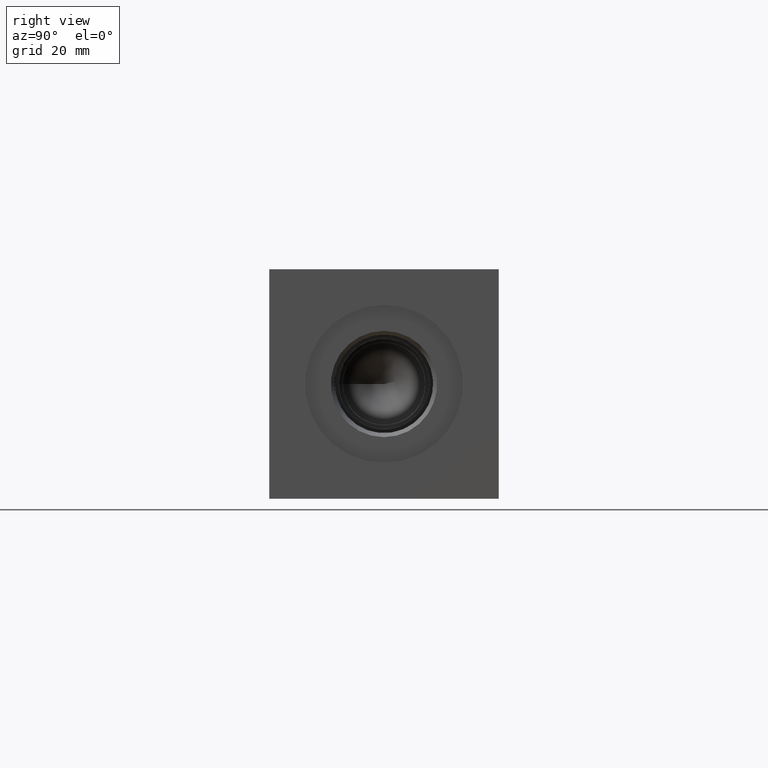
[diagram: clean part render]
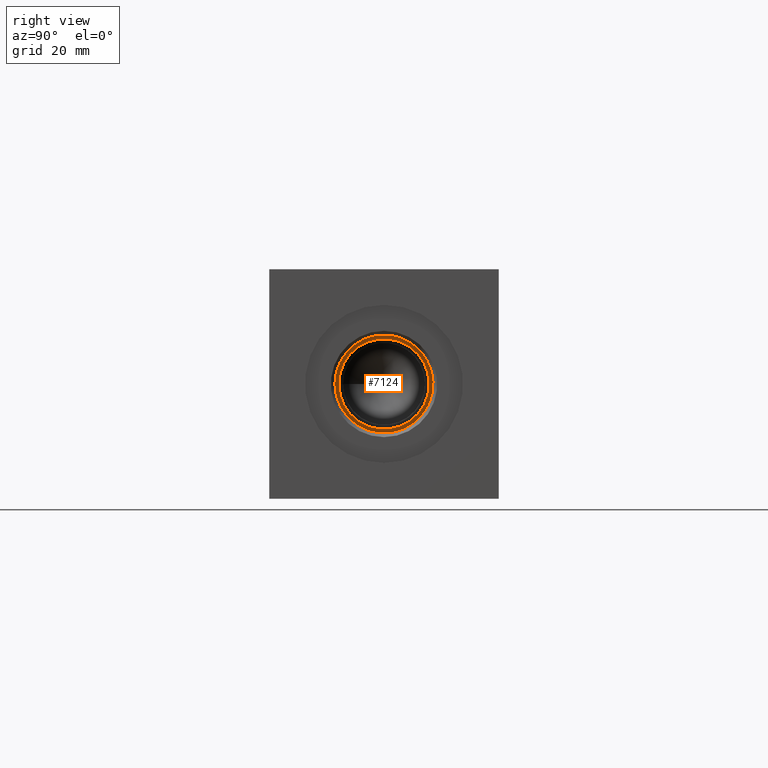
[diagram: same view with one face highlighted and labeled with its STEP entity id]
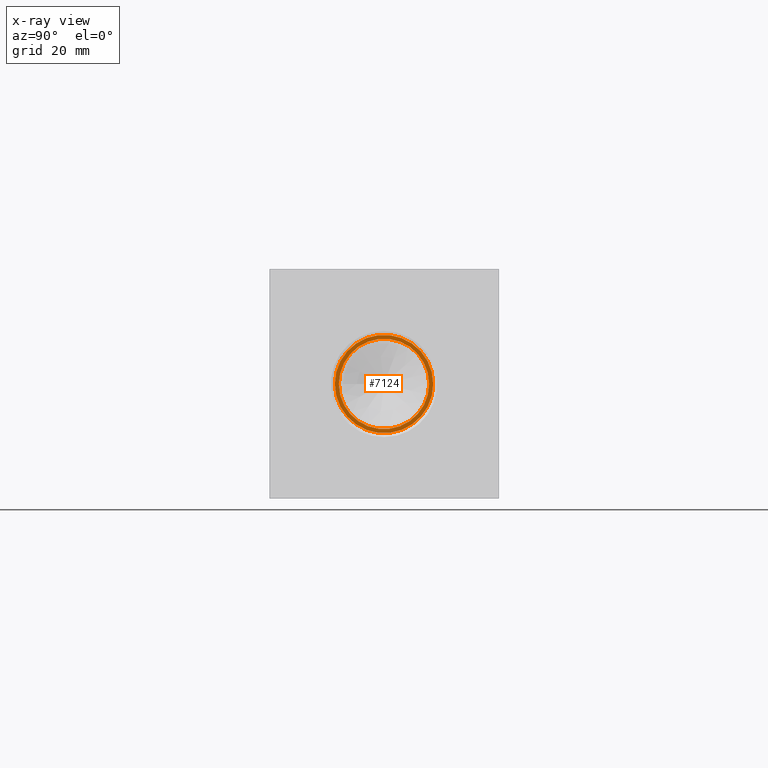
[diagram: x-ray of the same camera — body ghosted, the highlighted face saturated]
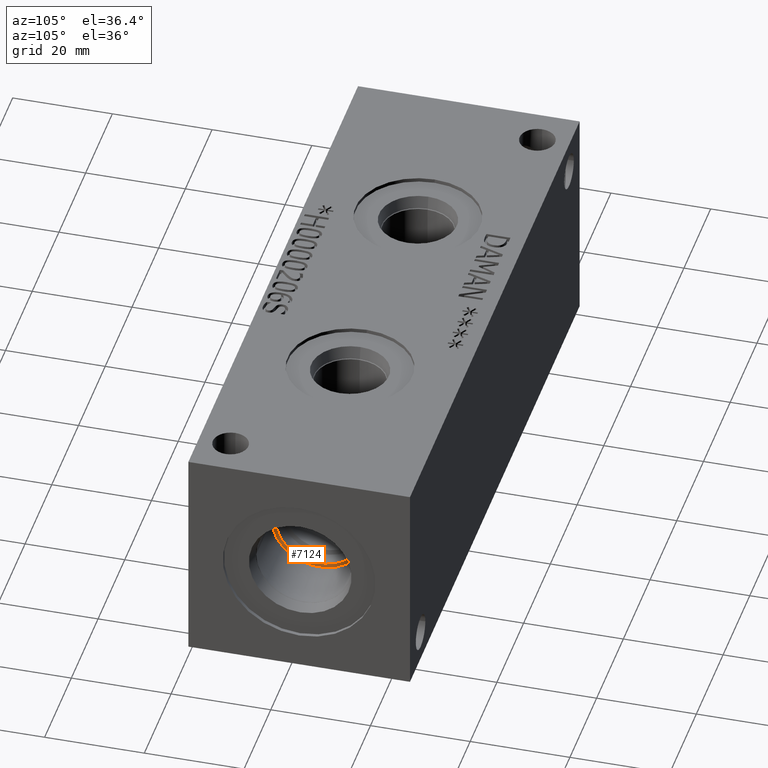
[diagram: same view with one face highlighted and labeled with its STEP entity id]
A machine part, right view. The second image highlights one B-rep face of the part: STEP entity #7124.
The next image is the same camera in x-ray: the body ghosted, the highlighted face saturated — about 0% of this face is hidden behind the body in this view.
A second angle (auxiliary view) of the same face is appended — the face is thin or edge-on in the first view.
In plain terms, the highlighted planar face has unit normal (1, 0, 0).
Its self-contained STEP definition (entity closure, byte-faithful):
#105=CIRCLE('',#7437,9.525);
#106=CIRCLE('',#7438,9.525);
#107=CIRCLE('',#7439,8.7503);
#190=FACE_BOUND('',#1273,.T.);
#873=FACE_OUTER_BOUND('',#1272,.T.);
#1272=EDGE_LOOP('',(#6096,#6097));
#1273=EDGE_LOOP('',(#6098));
#3261=VERTEX_POINT('',#12214);
#3262=VERTEX_POINT('',#12215);
#3263=VERTEX_POINT('',#12218);
#4224=EDGE_CURVE('',#3261,#3262,#105,.T.);
#4225=EDGE_CURVE('',#3262,#3261,#106,.T.);
#4226=EDGE_CURVE('',#3263,#3263,#107,.T.);
#6096=ORIENTED_EDGE('',*,*,#4224,.T.);
#6097=ORIENTED_EDGE('',*,*,#4225,.T.);
#6098=ORIENTED_EDGE('',*,*,#4226,.F.);
#6486=PLANE('',#7436);
#7124=ADVANCED_FACE('',(#873,#190),#6486,.T.);
#7436=AXIS2_PLACEMENT_3D('',#12213,#8678,#8679);
#7437=AXIS2_PLACEMENT_3D('',#12216,#8680,#8681);
#7438=AXIS2_PLACEMENT_3D('',#12217,#8682,#8683);
#7439=AXIS2_PLACEMENT_3D('',#12219,#8684,#8685);
#8678=DIRECTION('center_axis',(1.,0.,0.));
#8679=DIRECTION('ref_axis',(0.,1.,0.));
#8680=DIRECTION('center_axis',(1.,0.,0.));
#8681=DIRECTION('ref_axis',(0.,1.,0.));
#8682=DIRECTION('center_axis',(1.,0.,0.));
#8683=DIRECTION('ref_axis',(0.,1.,0.));
#8684=DIRECTION('center_axis',(1.,0.,0.));
#8685=DIRECTION('ref_axis',(0.,1.,0.));
#12213=CARTESIAN_POINT('Origin',(111.9378,22.225,22.225));
#12214=CARTESIAN_POINT('',(111.9378,31.75,22.225));
#12215=CARTESIAN_POINT('',(111.9378,12.7,22.225));
#12216=CARTESIAN_POINT('Origin',(111.9378,22.225,22.225));
#12217=CARTESIAN_POINT('Origin',(111.9378,22.225,22.225));
#12218=CARTESIAN_POINT('',(111.9378,13.4747,22.225));
#12219=CARTESIAN_POINT('Origin',(111.9378,22.225,22.225));